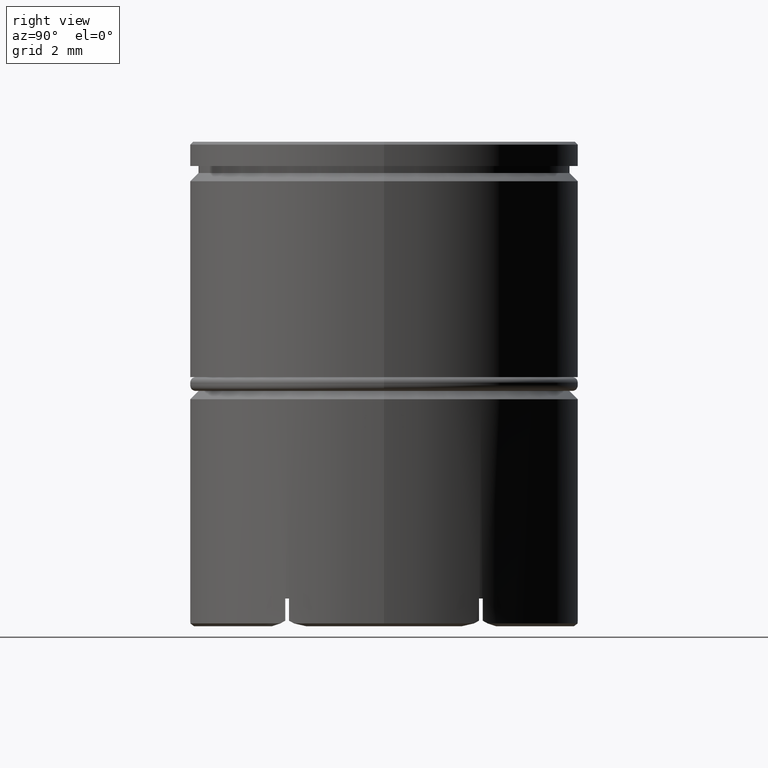
[diagram: clean part render]
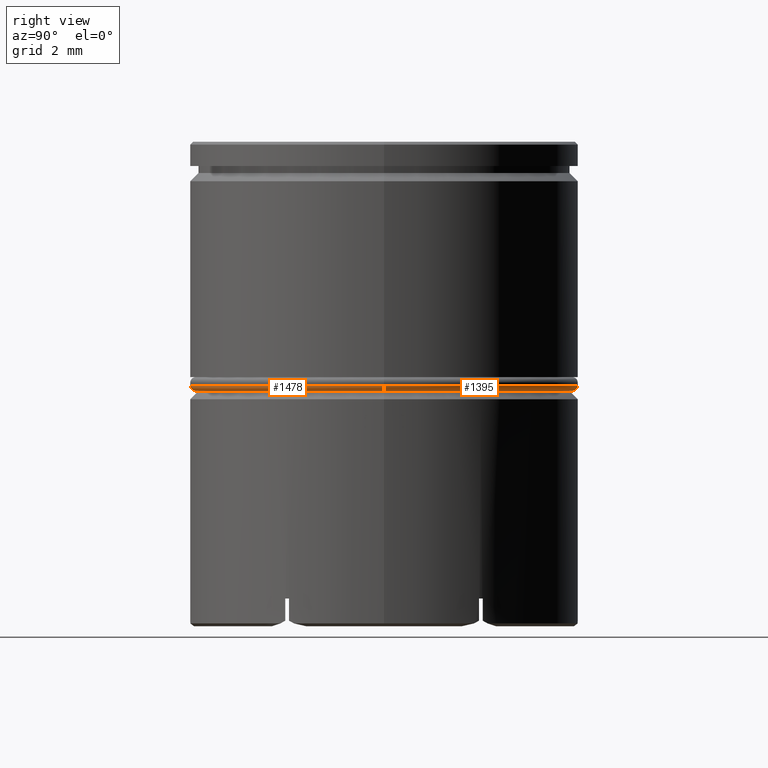
[diagram: same view with one multi-face feature highlighted, each face labeled with its STEP entity id]
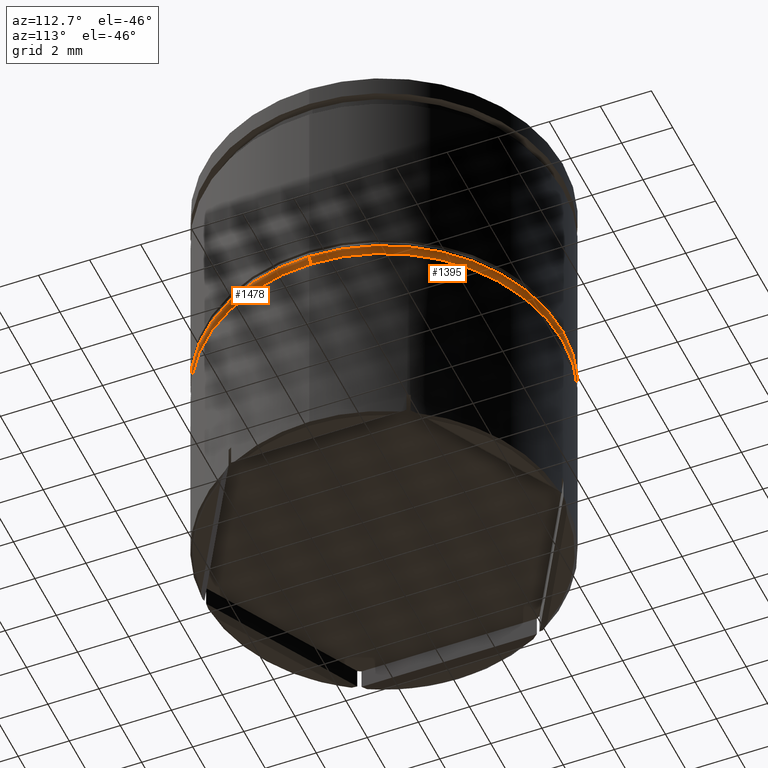
[diagram: same view with one multi-face feature highlighted, each face labeled with its STEP entity id]
A machine part, right view. The highlighted faces form ONE feature: a constant-radius fillet chain: 2 tangent blend faces with common blend radius 0.2 mm. The faces share edges in the B-rep.
A second angle (auxiliary view) of the same feature is appended — it is thin or edge-on in the first view.
Their STEP definitions:
[1] entity #1395 (Torus):
#44 = ORIENTED_EDGE ( 'NONE', *, *, #266, .F. ) ;
#53 = AXIS2_PLACEMENT_3D ( 'NONE', #832, #67, #351 ) ;
#55 = CIRCLE ( 'NONE', #53, 0.1999999999999996503 ) ;
#67 = DIRECTION ( 'NONE',  ( 1.224646799147353207E-16, 1.000000000000000000, -0.000000000000000000 ) ) ;
#73 = DIRECTION ( 'NONE',  ( 1.000000000000000000, 0.000000000000000000, 0.000000000000000000 ) ) ;
#87 = EDGE_CURVE ( 'NONE', #283, #1465, #880, .T. ) ;
#133 = DIRECTION ( 'NONE',  ( 0.000000000000000000, 0.000000000000000000, 1.000000000000000000 ) ) ;
#184 = AXIS2_PLACEMENT_3D ( 'NONE', #933, #1588, #73 ) ;
#207 = CARTESIAN_POINT ( 'NONE',  ( -6.800000000000001599, 8.450062914116737647E-16, -9.000000000000001776 ) ) ;
#265 = CARTESIAN_POINT ( 'NONE',  ( -7.000000000000000888, 8.572527594031474176E-16, -8.799999999999998934 ) ) ;
#266 = EDGE_CURVE ( 'NONE', #1465, #1569, #710, .T. ) ;
#273 = CIRCLE ( 'NONE', #184, 6.800000000000001599 ) ;
#283 = VERTEX_POINT ( 'NONE', #697 ) ;
#351 = DIRECTION ( 'NONE',  ( -1.000000000000000000, 1.224646799147353454E-16, 0.000000000000000000 ) ) ;
#366 = EDGE_CURVE ( 'NONE', #795, #283, #273, .T. ) ;
#434 = DIRECTION ( 'NONE',  ( 0.000000000000000000, 0.000000000000000000, 1.000000000000000000 ) ) ;
#458 = DIRECTION ( 'NONE',  ( 0.000000000000000000, -1.000000000000000000, 0.000000000000000000 ) ) ;
#579 = CARTESIAN_POINT ( 'NONE',  ( 6.800000000000001599, 0.000000000000000000, -8.799999999999998934 ) ) ;
#678 = ORIENTED_EDGE ( 'NONE', *, *, #87, .F. ) ;
#697 = CARTESIAN_POINT ( 'NONE',  ( 6.800000000000001599, 0.000000000000000000, -9.000000000000001776 ) ) ;
#710 = CIRCLE ( 'NONE', #1632, 7.000000000000000888 ) ;
#714 = EDGE_CURVE ( 'NONE', #795, #1569, #55, .T. ) ;
#795 = VERTEX_POINT ( 'NONE', #207 ) ;
#804 = AXIS2_PLACEMENT_3D ( 'NONE', #579, #458, #1345 ) ;
#811 = TOROIDAL_SURFACE ( 'NONE', #1438, 6.800000000000001599, 0.2000000000000000111 ) ;
#832 = CARTESIAN_POINT ( 'NONE',  ( -6.800000000000001599, 8.327598234202003091E-16, -8.799999999999998934 ) ) ;
#880 = CIRCLE ( 'NONE', #804, 0.2000000000000005107 ) ;
#933 = CARTESIAN_POINT ( 'NONE',  ( 0.000000000000000000, 0.000000000000000000, -9.000000000000001776 ) ) ;
#1038 = ORIENTED_EDGE ( 'NONE', *, *, #714, .T. ) ;
#1053 = CARTESIAN_POINT ( 'NONE',  ( 0.000000000000000000, 0.000000000000000000, -8.799999999999998934 ) ) ;
#1142 = DIRECTION ( 'NONE',  ( 1.000000000000000000, 0.000000000000000000, 0.000000000000000000 ) ) ;
#1205 = EDGE_LOOP ( 'NONE', ( #1218, #1038, #44, #678 ) ) ;
#1218 = ORIENTED_EDGE ( 'NONE', *, *, #366, .F. ) ;
#1342 = CARTESIAN_POINT ( 'NONE',  ( 7.000000000000000888, 0.000000000000000000, -8.799999999999998934 ) ) ;
#1345 = DIRECTION ( 'NONE',  ( 0.000000000000000000, 0.000000000000000000, -1.000000000000000000 ) ) ;
#1395 = ADVANCED_FACE ( 'NONE', ( #1550 ), #811, .T. ) ;
#1420 = CARTESIAN_POINT ( 'NONE',  ( 0.000000000000000000, 0.000000000000000000, -8.799999999999998934 ) ) ;
#1438 = AXIS2_PLACEMENT_3D ( 'NONE', #1053, #434, #1594 ) ;
#1465 = VERTEX_POINT ( 'NONE', #1342 ) ;
#1550 = FACE_OUTER_BOUND ( 'NONE', #1205, .T. ) ;
#1569 = VERTEX_POINT ( 'NONE', #265 ) ;
#1588 = DIRECTION ( 'NONE',  ( -0.000000000000000000, -0.000000000000000000, -1.000000000000000000 ) ) ;
#1594 = DIRECTION ( 'NONE',  ( 1.000000000000000000, 0.000000000000000000, 0.000000000000000000 ) ) ;
#1632 = AXIS2_PLACEMENT_3D ( 'NONE', #1420, #133, #1142 ) ;
[2] entity #1478 (Torus):
#15 = AXIS2_PLACEMENT_3D ( 'NONE', #71, #1099, #966 ) ;
#53 = AXIS2_PLACEMENT_3D ( 'NONE', #832, #67, #351 ) ;
#55 = CIRCLE ( 'NONE', #53, 0.1999999999999996503 ) ;
#67 = DIRECTION ( 'NONE',  ( 1.224646799147353207E-16, 1.000000000000000000, -0.000000000000000000 ) ) ;
#71 = CARTESIAN_POINT ( 'NONE',  ( 0.000000000000000000, 0.000000000000000000, -8.799999999999998934 ) ) ;
#87 = EDGE_CURVE ( 'NONE', #283, #1465, #880, .T. ) ;
#107 = AXIS2_PLACEMENT_3D ( 'NONE', #1386, #518, #1149 ) ;
#207 = CARTESIAN_POINT ( 'NONE',  ( -6.800000000000001599, 8.450062914116737647E-16, -9.000000000000001776 ) ) ;
#241 = CIRCLE ( 'NONE', #107, 6.800000000000001599 ) ;
#265 = CARTESIAN_POINT ( 'NONE',  ( -7.000000000000000888, 8.572527594031474176E-16, -8.799999999999998934 ) ) ;
#283 = VERTEX_POINT ( 'NONE', #697 ) ;
#351 = DIRECTION ( 'NONE',  ( -1.000000000000000000, 1.224646799147353454E-16, 0.000000000000000000 ) ) ;
#381 = ORIENTED_EDGE ( 'NONE', *, *, #87, .T. ) ;
#454 = FACE_OUTER_BOUND ( 'NONE', #1088, .T. ) ;
#458 = DIRECTION ( 'NONE',  ( 0.000000000000000000, -1.000000000000000000, 0.000000000000000000 ) ) ;
#464 = TOROIDAL_SURFACE ( 'NONE', #15, 6.800000000000001599, 0.2000000000000000111 ) ;
#518 = DIRECTION ( 'NONE',  ( -0.000000000000000000, -0.000000000000000000, -1.000000000000000000 ) ) ;
#579 = CARTESIAN_POINT ( 'NONE',  ( 6.800000000000001599, 0.000000000000000000, -8.799999999999998934 ) ) ;
#588 = EDGE_CURVE ( 'NONE', #283, #795, #241, .T. ) ;
#599 = CIRCLE ( 'NONE', #814, 7.000000000000000888 ) ;
#663 = DIRECTION ( 'NONE',  ( 1.000000000000000000, 0.000000000000000000, 0.000000000000000000 ) ) ;
#697 = CARTESIAN_POINT ( 'NONE',  ( 6.800000000000001599, 0.000000000000000000, -9.000000000000001776 ) ) ;
#714 = EDGE_CURVE ( 'NONE', #795, #1569, #55, .T. ) ;
#769 = ORIENTED_EDGE ( 'NONE', *, *, #714, .F. ) ;
#795 = VERTEX_POINT ( 'NONE', #207 ) ;
#804 = AXIS2_PLACEMENT_3D ( 'NONE', #579, #458, #1345 ) ;
#814 = AXIS2_PLACEMENT_3D ( 'NONE', #1535, #1166, #663 ) ;
#832 = CARTESIAN_POINT ( 'NONE',  ( -6.800000000000001599, 8.327598234202003091E-16, -8.799999999999998934 ) ) ;
#880 = CIRCLE ( 'NONE', #804, 0.2000000000000005107 ) ;
#966 = DIRECTION ( 'NONE',  ( 1.000000000000000000, 0.000000000000000000, 0.000000000000000000 ) ) ;
#1088 = EDGE_LOOP ( 'NONE', ( #769, #1305, #381, #1610 ) ) ;
#1099 = DIRECTION ( 'NONE',  ( 0.000000000000000000, 0.000000000000000000, 1.000000000000000000 ) ) ;
#1149 = DIRECTION ( 'NONE',  ( 1.000000000000000000, 0.000000000000000000, 0.000000000000000000 ) ) ;
#1166 = DIRECTION ( 'NONE',  ( 0.000000000000000000, 0.000000000000000000, 1.000000000000000000 ) ) ;
#1305 = ORIENTED_EDGE ( 'NONE', *, *, #588, .F. ) ;
#1313 = EDGE_CURVE ( 'NONE', #1569, #1465, #599, .T. ) ;
#1342 = CARTESIAN_POINT ( 'NONE',  ( 7.000000000000000888, 0.000000000000000000, -8.799999999999998934 ) ) ;
#1345 = DIRECTION ( 'NONE',  ( 0.000000000000000000, 0.000000000000000000, -1.000000000000000000 ) ) ;
#1386 = CARTESIAN_POINT ( 'NONE',  ( 0.000000000000000000, 0.000000000000000000, -9.000000000000001776 ) ) ;
#1465 = VERTEX_POINT ( 'NONE', #1342 ) ;
#1478 = ADVANCED_FACE ( 'NONE', ( #454 ), #464, .T. ) ;
#1535 = CARTESIAN_POINT ( 'NONE',  ( 0.000000000000000000, 0.000000000000000000, -8.799999999999998934 ) ) ;
#1569 = VERTEX_POINT ( 'NONE', #265 ) ;
#1610 = ORIENTED_EDGE ( 'NONE', *, *, #1313, .F. ) ;